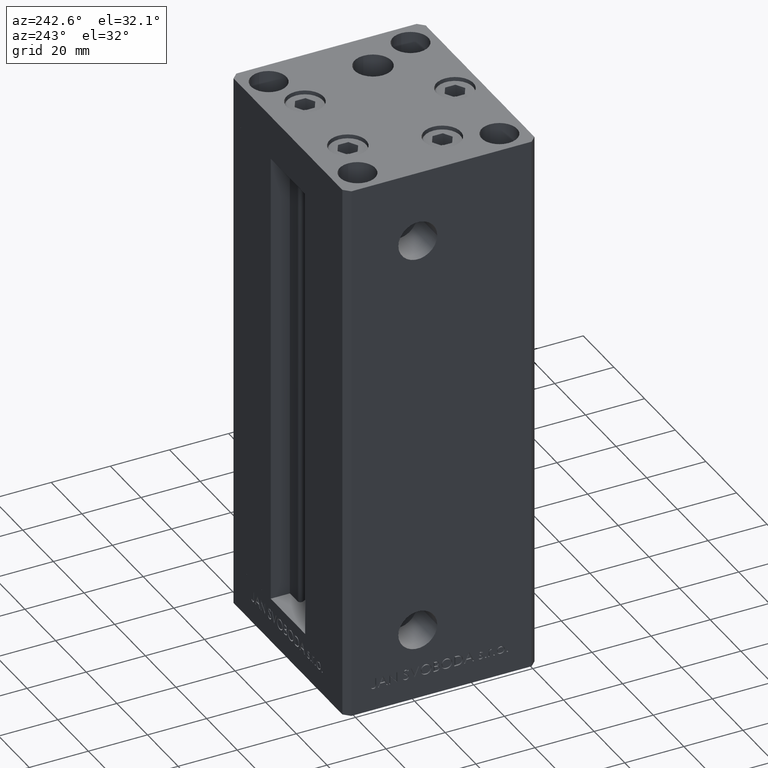
[diagram: clean part render]
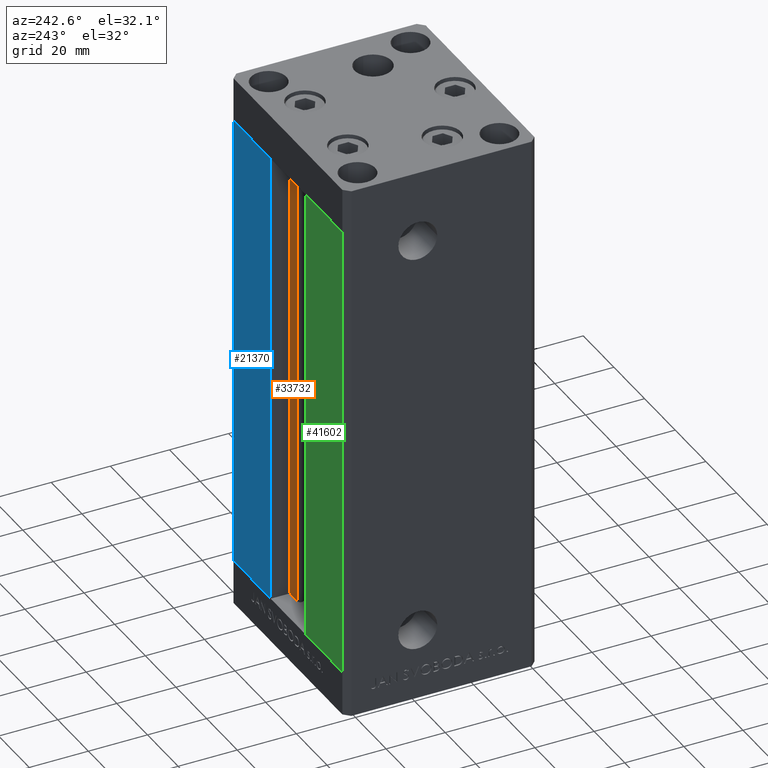
[diagram: same view with three faces highlighted in distinct colors, each labeled with its STEP entity id]
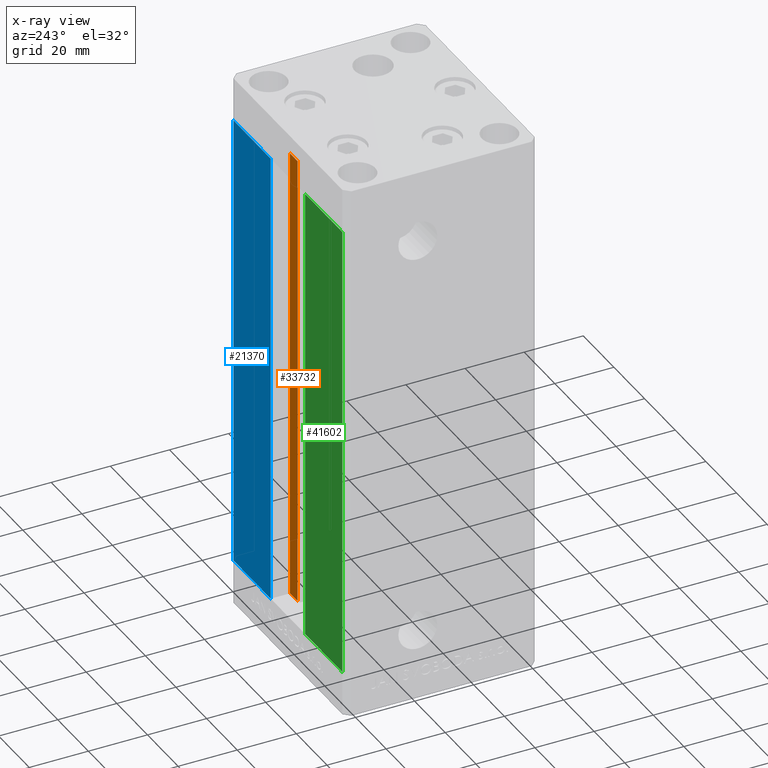
[diagram: x-ray of the same camera — body ghosted, the three highlighted faces saturated]
A machine part, auxiliary view with three faces highlighted in distinct colors.
The next image is the same camera in x-ray (body ghosted, the three faces saturated) — at least one of them is partly hidden behind the body in this view.
Their STEP definitions:

[orange] entity #33732 — the highlighted planar face has unit normal (0, -1, 0).
#1235 = VERTEX_POINT ( 'NONE', #25065 ) ;
#2456 = LINE ( 'NONE', #32856, #41028 ) ;
#3228 = VERTEX_POINT ( 'NONE', #12988 ) ;
#7936 = VERTEX_POINT ( 'NONE', #32933 ) ;
#12123 = LINE ( 'NONE', #47061, #30431 ) ;
#12677 = VERTEX_POINT ( 'NONE', #27113 ) ;
#12975 = EDGE_CURVE ( 'NONE', #3228, #1235, #2456, .T. ) ;
#12988 = CARTESIAN_POINT ( 'NONE',  ( 11.25000000000000178, 25.99999999999999289, 156.0000000000000000 ) ) ;
#13458 = CARTESIAN_POINT ( 'NONE',  ( 6.183333333334001480, 25.99999999999999289, 0.000000000000000000 ) ) ;
#14268 = AXIS2_PLACEMENT_3D ( 'NONE', #25493, #18454, #33794 ) ;
#15183 = FACE_OUTER_BOUND ( 'NONE', #45268, .T. ) ;
#16679 = EDGE_CURVE ( 'NONE', #12677, #7936, #47413, .T. ) ;
#18454 = DIRECTION ( 'NONE',  ( 0.000000000000000000, -1.000000000000000000, 0.000000000000000000 ) ) ;
#20585 = DIRECTION ( 'NONE',  ( -0.000000000000000000, -0.000000000000000000, 1.000000000000000000 ) ) ;
#22901 = ORIENTED_EDGE ( 'NONE', *, *, #12975, .F. ) ;
#25065 = CARTESIAN_POINT ( 'NONE',  ( 6.183333333334001480, 25.99999999999999289, 156.0000000000000000 ) ) ;
#25493 = CARTESIAN_POINT ( 'NONE',  ( 6.183333333334001480, 25.99999999999999289, 0.000000000000000000 ) ) ;
#25984 = ORIENTED_EDGE ( 'NONE', *, *, #16679, .F. ) ;
#27113 = CARTESIAN_POINT ( 'NONE',  ( 6.183333333334001480, 25.99999999999999289, 0.000000000000000000 ) ) ;
#27922 = EDGE_CURVE ( 'NONE', #12677, #1235, #43962, .T. ) ;
#28630 = CARTESIAN_POINT ( 'NONE',  ( 6.183333333334001480, 25.99999999999999289, 0.000000000000000000 ) ) ;
#30431 = VECTOR ( 'NONE', #38765, 1000.000000000000000 ) ;
#31000 = ORIENTED_EDGE ( 'NONE', *, *, #35965, .F. ) ;
#32856 = CARTESIAN_POINT ( 'NONE',  ( 0.000000000000000000, 25.99999999999999289, 156.0000000000000000 ) ) ;
#32933 = CARTESIAN_POINT ( 'NONE',  ( 11.25000000000000178, 25.99999999999999289, 0.000000000000000000 ) ) ;
#33732 = ADVANCED_FACE ( 'NONE', ( #15183 ), #41086, .F. ) ;
#33794 = DIRECTION ( 'NONE',  ( 0.000000000000000000, -0.000000000000000000, -1.000000000000000000 ) ) ;
#35965 = EDGE_CURVE ( 'NONE', #7936, #3228, #12123, .T. ) ;
#38765 = DIRECTION ( 'NONE',  ( -0.000000000000000000, -0.000000000000000000, 1.000000000000000000 ) ) ;
#41028 = VECTOR ( 'NONE', #44176, 1000.000000000000000 ) ;
#41086 = PLANE ( 'NONE',  #14268 ) ;
#43647 = DIRECTION ( 'NONE',  ( 1.000000000000000000, 0.000000000000000000, 0.000000000000000000 ) ) ;
#43962 = LINE ( 'NONE', #28630, #47795 ) ;
#44176 = DIRECTION ( 'NONE',  ( -1.000000000000000000, 0.000000000000000000, 0.000000000000000000 ) ) ;
#45268 = EDGE_LOOP ( 'NONE', ( #31000, #25984, #46448, #22901 ) ) ;
#46448 = ORIENTED_EDGE ( 'NONE', *, *, #27922, .T. ) ;
#46666 = VECTOR ( 'NONE', #43647, 1000.000000000000000 ) ;
#47061 = CARTESIAN_POINT ( 'NONE',  ( 11.25000000000000178, 25.99999999999999289, 0.000000000000000000 ) ) ;
#47413 = LINE ( 'NONE', #13458, #46666 ) ;
#47795 = VECTOR ( 'NONE', #20585, 1000.000000000000000 ) ;

[blue] entity #21370 — the highlighted planar face has unit normal (0, -1, 0).
#155 = CARTESIAN_POINT ( 'NONE',  ( 11.25000000000000178, 32.49999999999999289, 0.000000000000000000 ) ) ;
#1270 = EDGE_CURVE ( 'NONE', #49260, #46639, #32371, .T. ) ;
#5436 = DIRECTION ( 'NONE',  ( 1.000000000000000000, 0.000000000000000000, 0.000000000000000000 ) ) ;
#6490 = DIRECTION ( 'NONE',  ( 0.000000000000000000, -0.000000000000000000, -1.000000000000000000 ) ) ;
#9503 = DIRECTION ( 'NONE',  ( -0.000000000000000000, -0.000000000000000000, -1.000000000000000000 ) ) ;
#10696 = VECTOR ( 'NONE', #9503, 1000.000000000000000 ) ;
#11157 = VERTEX_POINT ( 'NONE', #33353 ) ;
#12071 = CARTESIAN_POINT ( 'NONE',  ( 35.50000000000000000, 32.49999999999999289, 0.000000000000000000 ) ) ;
#12253 = VECTOR ( 'NONE', #35318, 1000.000000000000000 ) ;
#13446 = DIRECTION ( 'NONE',  ( -1.000000000000000000, 0.000000000000000000, 0.000000000000000000 ) ) ;
#14009 = CARTESIAN_POINT ( 'NONE',  ( 35.50000000000000000, 32.49999999999999289, 156.0000000000000000 ) ) ;
#17461 = LINE ( 'NONE', #25253, #27122 ) ;
#19034 = VERTEX_POINT ( 'NONE', #155 ) ;
#19702 = EDGE_CURVE ( 'NONE', #19034, #11157, #32038, .T. ) ;
#21370 = ADVANCED_FACE ( 'NONE', ( #29356 ), #48194, .F. ) ;
#24398 = CARTESIAN_POINT ( 'NONE',  ( 35.50000000000000000, 32.49999999999999289, 156.0000000000000000 ) ) ;
#25253 = CARTESIAN_POINT ( 'NONE',  ( -11.25000000000000178, 32.49999999999999289, 0.000000000000000000 ) ) ;
#25572 = CARTESIAN_POINT ( 'NONE',  ( -11.25000000000000178, 32.49999999999999289, 156.0000000000000000 ) ) ;
#26677 = EDGE_CURVE ( 'NONE', #11157, #49260, #39857, .T. ) ;
#27122 = VECTOR ( 'NONE', #13446, 1000.000000000000000 ) ;
#29356 = FACE_OUTER_BOUND ( 'NONE', #44005, .T. ) ;
#29688 = ORIENTED_EDGE ( 'NONE', *, *, #1270, .T. ) ;
#31548 = AXIS2_PLACEMENT_3D ( 'NONE', #25572, #37398, #6490 ) ;
#32038 = LINE ( 'NONE', #40320, #12253 ) ;
#32371 = LINE ( 'NONE', #14009, #10696 ) ;
#33353 = CARTESIAN_POINT ( 'NONE',  ( 11.24999999999999467, 32.49999999999999289, 156.0000000000000000 ) ) ;
#34405 = EDGE_CURVE ( 'NONE', #46639, #19034, #17461, .T. ) ;
#34481 = ORIENTED_EDGE ( 'NONE', *, *, #26677, .T. ) ;
#35318 = DIRECTION ( 'NONE',  ( -0.000000000000000000, -0.000000000000000000, 1.000000000000000000 ) ) ;
#37398 = DIRECTION ( 'NONE',  ( 0.000000000000000000, -1.000000000000000000, 0.000000000000000000 ) ) ;
#38883 = ORIENTED_EDGE ( 'NONE', *, *, #19702, .T. ) ;
#39857 = LINE ( 'NONE', #40343, #42183 ) ;
#40320 = CARTESIAN_POINT ( 'NONE',  ( 11.25000000000000178, 32.49999999999999289, 0.000000000000000000 ) ) ;
#40343 = CARTESIAN_POINT ( 'NONE',  ( -11.25000000000000178, 32.49999999999999289, 156.0000000000000000 ) ) ;
#42183 = VECTOR ( 'NONE', #5436, 1000.000000000000000 ) ;
#44005 = EDGE_LOOP ( 'NONE', ( #46376, #38883, #34481, #29688 ) ) ;
#46376 = ORIENTED_EDGE ( 'NONE', *, *, #34405, .T. ) ;
#46639 = VERTEX_POINT ( 'NONE', #12071 ) ;
#48194 = PLANE ( 'NONE',  #31548 ) ;
#49260 = VERTEX_POINT ( 'NONE', #24398 ) ;

[green] entity #41602 — the highlighted planar face has unit normal (0, -1, 0).
#214 = DIRECTION ( 'NONE',  ( -0.000000000000000000, -0.000000000000000000, 1.000000000000000000 ) ) ;
#3102 = EDGE_CURVE ( 'NONE', #4987, #8727, #19782, .T. ) ;
#4987 = VERTEX_POINT ( 'NONE', #38996 ) ;
#5731 = VECTOR ( 'NONE', #28037, 1000.000000000000000 ) ;
#5742 = VECTOR ( 'NONE', #48534, 1000.000000000000000 ) ;
#6010 = ORIENTED_EDGE ( 'NONE', *, *, #3102, .F. ) ;
#7867 = VECTOR ( 'NONE', #16964, 1000.000000000000000 ) ;
#8727 = VERTEX_POINT ( 'NONE', #16876 ) ;
#10084 = LINE ( 'NONE', #13590, #5742 ) ;
#10921 = CARTESIAN_POINT ( 'NONE',  ( -11.25000000000000178, 32.49999999999999289, 156.0000000000000000 ) ) ;
#13219 = EDGE_CURVE ( 'NONE', #29620, #8727, #42880, .T. ) ;
#13590 = CARTESIAN_POINT ( 'NONE',  ( -35.50000000000000000, 32.49999999999999289, 156.0000000000000000 ) ) ;
#15435 = PLANE ( 'NONE',  #20964 ) ;
#16876 = CARTESIAN_POINT ( 'NONE',  ( -11.25000000000000178, 32.49999999999999289, 156.0000000000000000 ) ) ;
#16964 = DIRECTION ( 'NONE',  ( -1.000000000000000000, 0.000000000000000000, 0.000000000000000000 ) ) ;
#18700 = FACE_OUTER_BOUND ( 'NONE', #19837, .T. ) ;
#18948 = DIRECTION ( 'NONE',  ( 0.000000000000000000, -1.000000000000000000, 0.000000000000000000 ) ) ;
#19281 = CARTESIAN_POINT ( 'NONE',  ( -11.25000000000000178, 32.49999999999999289, 0.000000000000000000 ) ) ;
#19413 = CARTESIAN_POINT ( 'NONE',  ( -35.50000000000000000, 32.49999999999999289, 156.0000000000000000 ) ) ;
#19487 = ORIENTED_EDGE ( 'NONE', *, *, #13219, .T. ) ;
#19782 = LINE ( 'NONE', #19281, #38041 ) ;
#19837 = EDGE_LOOP ( 'NONE', ( #19487, #6010, #48721, #47785 ) ) ;
#20964 = AXIS2_PLACEMENT_3D ( 'NONE', #10921, #18948, #49360 ) ;
#24021 = CARTESIAN_POINT ( 'NONE',  ( -11.25000000000000178, 32.49999999999999289, 156.0000000000000000 ) ) ;
#24268 = CARTESIAN_POINT ( 'NONE',  ( -11.25000000000000178, 32.49999999999999289, 0.000000000000000000 ) ) ;
#27415 = CARTESIAN_POINT ( 'NONE',  ( -35.50000000000000000, 32.49999999999999289, 0.000000000000000000 ) ) ;
#28037 = DIRECTION ( 'NONE',  ( 1.000000000000000000, 0.000000000000000000, 0.000000000000000000 ) ) ;
#29620 = VERTEX_POINT ( 'NONE', #19413 ) ;
#32963 = VERTEX_POINT ( 'NONE', #27415 ) ;
#33625 = EDGE_CURVE ( 'NONE', #4987, #32963, #36804, .T. ) ;
#36804 = LINE ( 'NONE', #24268, #7867 ) ;
#38041 = VECTOR ( 'NONE', #214, 1000.000000000000000 ) ;
#38996 = CARTESIAN_POINT ( 'NONE',  ( -11.25000000000000178, 32.49999999999999289, 0.000000000000000000 ) ) ;
#41602 = ADVANCED_FACE ( 'NONE', ( #18700 ), #15435, .F. ) ;
#42880 = LINE ( 'NONE', #24021, #5731 ) ;
#46403 = EDGE_CURVE ( 'NONE', #29620, #32963, #10084, .T. ) ;
#47785 = ORIENTED_EDGE ( 'NONE', *, *, #46403, .F. ) ;
#48534 = DIRECTION ( 'NONE',  ( -0.000000000000000000, -0.000000000000000000, -1.000000000000000000 ) ) ;
#48721 = ORIENTED_EDGE ( 'NONE', *, *, #33625, .T. ) ;
#49360 = DIRECTION ( 'NONE',  ( 0.000000000000000000, -0.000000000000000000, -1.000000000000000000 ) ) ;